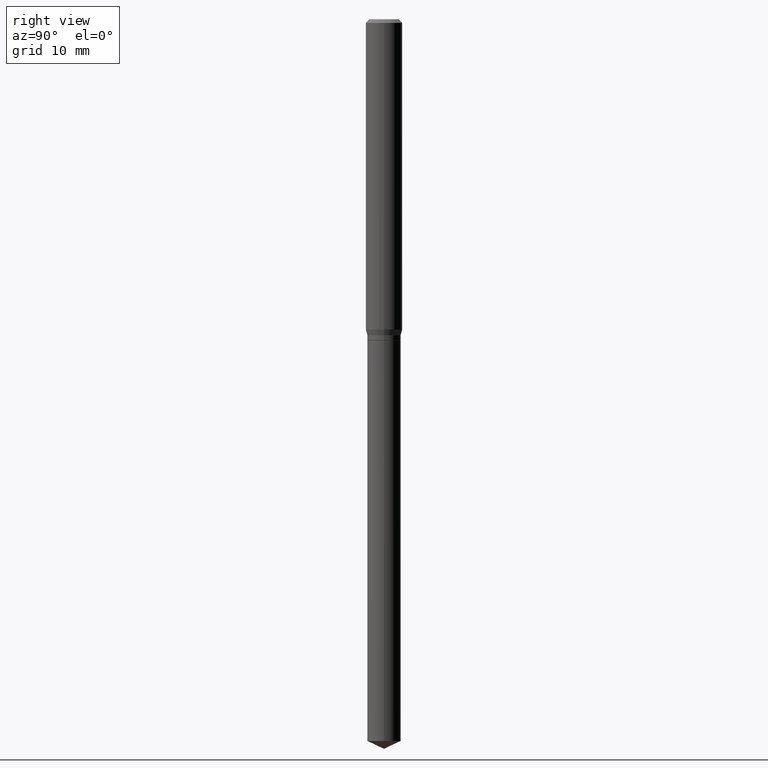
[diagram: clean part render]
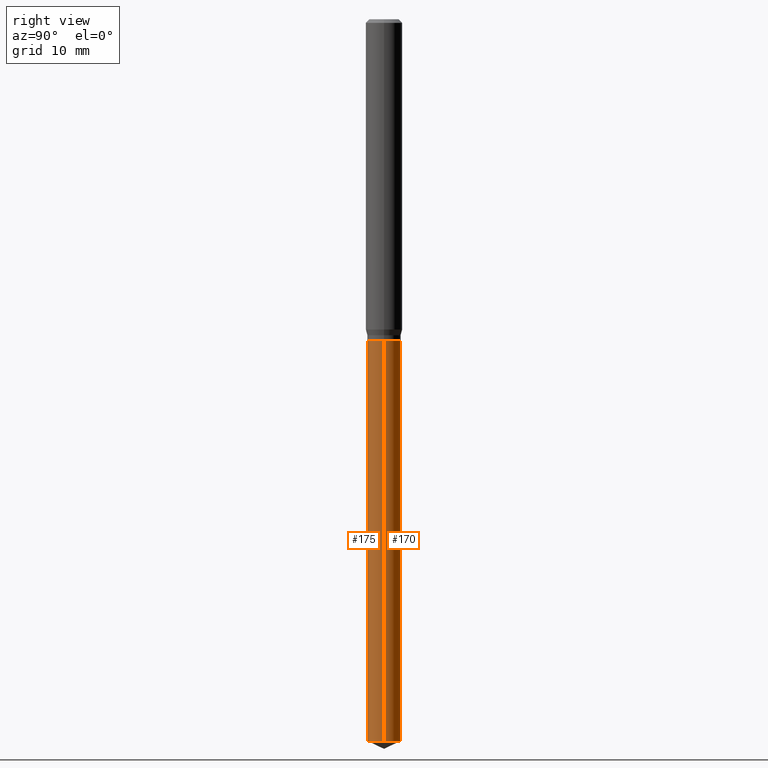
[diagram: same view with one multi-face feature highlighted, each face labeled with its STEP entity id]
A machine part, right view. The highlighted faces form ONE feature: a constant-radius fillet chain: 2 tangent blend faces with common blend radius 1.3754 mm. The faces share edges in the B-rep.
Their STEP definitions:
[1] entity #175 (Cylinder):
#1 = ORIENTED_EDGE ( 'NONE', *, *, #185, .T. ) ;
#17 = FACE_OUTER_BOUND ( 'NONE', #267, .T. ) ;
#21 = DIRECTION ( 'NONE',  ( -2.445468806185136877E-29, 3.491481338843145188E-15, 1.000000000000000000 ) ) ;
#26 = DIRECTION ( 'NONE',  ( -2.445468806185136597E-29, 3.491481338843145583E-15, 1.000000000000000000 ) ) ;
#31 = EDGE_CURVE ( 'NONE', #335, #365, #82, .T. ) ;
#42 = DIRECTION ( 'NONE',  ( 1.000000000000000000, -6.982962677686271444E-15, 0.000000000000000000 ) ) ;
#48 = ORIENTED_EDGE ( 'NONE', *, *, #269, .F. ) ;
#64 = DIRECTION ( 'NONE',  ( -2.445468806185136597E-29, 3.491481338843145583E-15, 1.000000000000000000 ) ) ;
#71 = ORIENTED_EDGE ( 'NONE', *, *, #31, .F. ) ;
#82 = CIRCLE ( 'NONE', #199, 0.05414999999999999675 ) ;
#103 = CARTESIAN_POINT ( 'NONE',  ( -0.05414999999999999675, -5.508773344447652182E-15, -1.039199999999999902 ) ) ;
#116 = AXIS2_PLACEMENT_3D ( 'NONE', #215, #64, #249 ) ;
#118 = CARTESIAN_POINT ( 'NONE',  ( 2.541331183387593623E-29, -3.628347407325796590E-15, -1.039199999999999902 ) ) ;
#128 = CARTESIAN_POINT ( 'NONE',  ( -0.05414999999999999675, -3.243588515911702905E-15, -1.039200000000000124 ) ) ;
#145 = CARTESIAN_POINT ( 'NONE',  ( 0.05415000000000000369, -8.536844493394409383E-15, -2.336749440310907033 ) ) ;
#159 = VECTOR ( 'NONE', #276, 39.37007874015748143 ) ;
#168 = CYLINDRICAL_SURFACE ( 'NONE', #312, 0.05414999999999999675 ) ;
#172 = CARTESIAN_POINT ( 'NONE',  ( 0.05414999999999999675, -4.006474836322508463E-15, -1.039200000000000124 ) ) ;
#175 = ADVANCED_FACE ( 'NONE', ( #17 ), #168, .T. ) ;
#178 = EDGE_CURVE ( 'NONE', #333, #343, #408, .T. ) ;
#185 = EDGE_CURVE ( 'NONE', #343, #365, #241, .T. ) ;
#199 = AXIS2_PLACEMENT_3D ( 'NONE', #118, #293, #42 ) ;
#215 = CARTESIAN_POINT ( 'NONE',  ( 5.714447864150900771E-29, -8.158717064397696721E-15, -2.336749440310907033 ) ) ;
#241 = LINE ( 'NONE', #172, #271 ) ;
#246 = CARTESIAN_POINT ( 'NONE',  ( -0.05415000000000000369, -7.773958172983603036E-15, -2.336749440310907033 ) ) ;
#249 = DIRECTION ( 'NONE',  ( 1.000000000000000000, -6.982962677686261977E-15, 0.000000000000000000 ) ) ;
#265 = ORIENTED_EDGE ( 'NONE', *, *, #178, .T. ) ;
#267 = EDGE_LOOP ( 'NONE', ( #48, #265, #1, #71 ) ) ;
#269 = EDGE_CURVE ( 'NONE', #333, #335, #464, .T. ) ;
#271 = VECTOR ( 'NONE', #21, 39.37007874015748143 ) ;
#276 = DIRECTION ( 'NONE',  ( -2.445468806185136877E-29, 3.491481338843145188E-15, 1.000000000000000000 ) ) ;
#293 = DIRECTION ( 'NONE',  ( -2.445468806185136597E-29, 3.491481338843145583E-15, 1.000000000000000000 ) ) ;
#312 = AXIS2_PLACEMENT_3D ( 'NONE', #397, #26, #354 ) ;
#333 = VERTEX_POINT ( 'NONE', #246 ) ;
#335 = VERTEX_POINT ( 'NONE', #103 ) ;
#343 = VERTEX_POINT ( 'NONE', #145 ) ;
#354 = DIRECTION ( 'NONE',  ( 1.000000000000000000, -6.982962677686261977E-15, 0.000000000000000000 ) ) ;
#365 = VERTEX_POINT ( 'NONE', #435 ) ;
#397 = CARTESIAN_POINT ( 'NONE',  ( 2.541331183387594184E-29, -3.628347407325797379E-15, -1.039200000000000124 ) ) ;
#408 = CIRCLE ( 'NONE', #116, 0.05414999999999999675 ) ;
#435 = CARTESIAN_POINT ( 'NONE',  ( 0.05414999999999999675, -4.006474836322508463E-15, -1.039199999999999902 ) ) ;
#464 = LINE ( 'NONE', #128, #159 ) ;
[2] entity #170 (Cylinder):
#10 = CIRCLE ( 'NONE', #115, 0.05414999999999999675 ) ;
#13 = DIRECTION ( 'NONE',  ( -2.445468806185136597E-29, 3.491481338843145583E-15, 1.000000000000000000 ) ) ;
#21 = DIRECTION ( 'NONE',  ( -2.445468806185136877E-29, 3.491481338843145188E-15, 1.000000000000000000 ) ) ;
#41 = EDGE_CURVE ( 'NONE', #343, #333, #59, .T. ) ;
#49 = EDGE_CURVE ( 'NONE', #365, #335, #10, .T. ) ;
#51 = FACE_OUTER_BOUND ( 'NONE', #285, .T. ) ;
#59 = CIRCLE ( 'NONE', #459, 0.05414999999999999675 ) ;
#77 = ORIENTED_EDGE ( 'NONE', *, *, #41, .T. ) ;
#92 = DIRECTION ( 'NONE',  ( 1.000000000000000000, -6.982962677686261977E-15, 0.000000000000000000 ) ) ;
#103 = CARTESIAN_POINT ( 'NONE',  ( -0.05414999999999999675, -5.508773344447652182E-15, -1.039199999999999902 ) ) ;
#115 = AXIS2_PLACEMENT_3D ( 'NONE', #444, #490, #298 ) ;
#128 = CARTESIAN_POINT ( 'NONE',  ( -0.05414999999999999675, -3.243588515911702905E-15, -1.039200000000000124 ) ) ;
#133 = CARTESIAN_POINT ( 'NONE',  ( 2.541331183387594184E-29, -3.628347407325797379E-15, -1.039200000000000124 ) ) ;
#145 = CARTESIAN_POINT ( 'NONE',  ( 0.05415000000000000369, -8.536844493394409383E-15, -2.336749440310907033 ) ) ;
#159 = VECTOR ( 'NONE', #276, 39.37007874015748143 ) ;
#170 = ADVANCED_FACE ( 'NONE', ( #51 ), #382, .T. ) ;
#172 = CARTESIAN_POINT ( 'NONE',  ( 0.05414999999999999675, -4.006474836322508463E-15, -1.039200000000000124 ) ) ;
#182 = DIRECTION ( 'NONE',  ( 1.000000000000000000, -6.982962677686261977E-15, 0.000000000000000000 ) ) ;
#184 = ORIENTED_EDGE ( 'NONE', *, *, #269, .T. ) ;
#185 = EDGE_CURVE ( 'NONE', #343, #365, #241, .T. ) ;
#241 = LINE ( 'NONE', #172, #271 ) ;
#246 = CARTESIAN_POINT ( 'NONE',  ( -0.05415000000000000369, -7.773958172983603036E-15, -2.336749440310907033 ) ) ;
#269 = EDGE_CURVE ( 'NONE', #333, #335, #464, .T. ) ;
#271 = VECTOR ( 'NONE', #21, 39.37007874015748143 ) ;
#276 = DIRECTION ( 'NONE',  ( -2.445468806185136877E-29, 3.491481338843145188E-15, 1.000000000000000000 ) ) ;
#285 = EDGE_LOOP ( 'NONE', ( #77, #184, #328, #338 ) ) ;
#296 = CARTESIAN_POINT ( 'NONE',  ( 5.714447864150900771E-29, -8.158717064397696721E-15, -2.336749440310907033 ) ) ;
#298 = DIRECTION ( 'NONE',  ( 1.000000000000000000, -6.982962677686271444E-15, 0.000000000000000000 ) ) ;
#328 = ORIENTED_EDGE ( 'NONE', *, *, #49, .F. ) ;
#333 = VERTEX_POINT ( 'NONE', #246 ) ;
#335 = VERTEX_POINT ( 'NONE', #103 ) ;
#338 = ORIENTED_EDGE ( 'NONE', *, *, #185, .F. ) ;
#343 = VERTEX_POINT ( 'NONE', #145 ) ;
#365 = VERTEX_POINT ( 'NONE', #435 ) ;
#366 = DIRECTION ( 'NONE',  ( -2.445468806185136597E-29, 3.491481338843145583E-15, 1.000000000000000000 ) ) ;
#382 = CYLINDRICAL_SURFACE ( 'NONE', #482, 0.05414999999999999675 ) ;
#435 = CARTESIAN_POINT ( 'NONE',  ( 0.05414999999999999675, -4.006474836322508463E-15, -1.039199999999999902 ) ) ;
#444 = CARTESIAN_POINT ( 'NONE',  ( 2.541331183387593623E-29, -3.628347407325796590E-15, -1.039199999999999902 ) ) ;
#459 = AXIS2_PLACEMENT_3D ( 'NONE', #296, #366, #182 ) ;
#464 = LINE ( 'NONE', #128, #159 ) ;
#482 = AXIS2_PLACEMENT_3D ( 'NONE', #133, #13, #92 ) ;
#490 = DIRECTION ( 'NONE',  ( -2.445468806185136597E-29, 3.491481338843145583E-15, 1.000000000000000000 ) ) ;